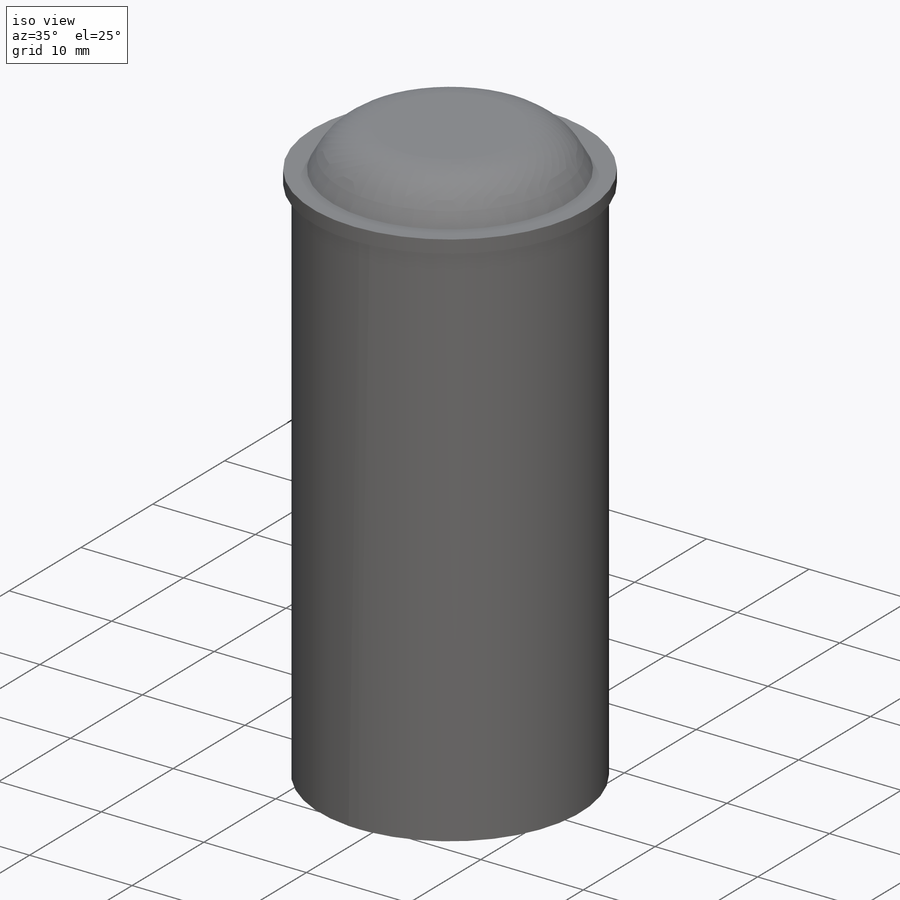
[diagram: iso view]
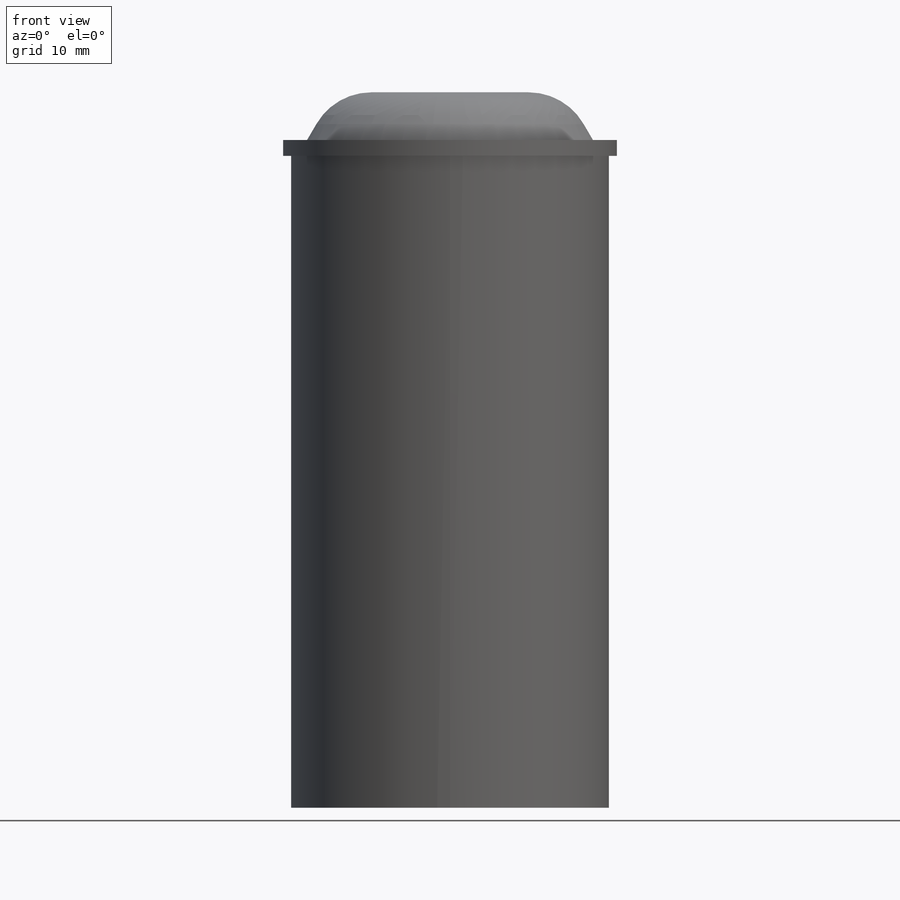
[diagram: front view]
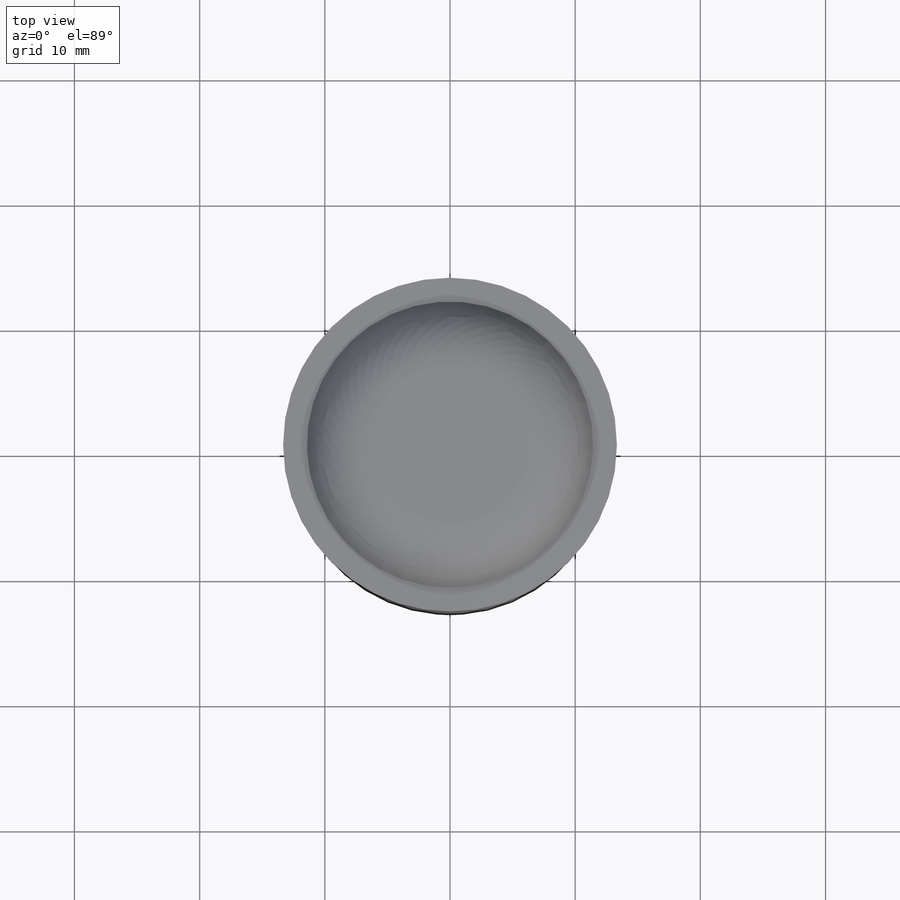
[diagram: top view]
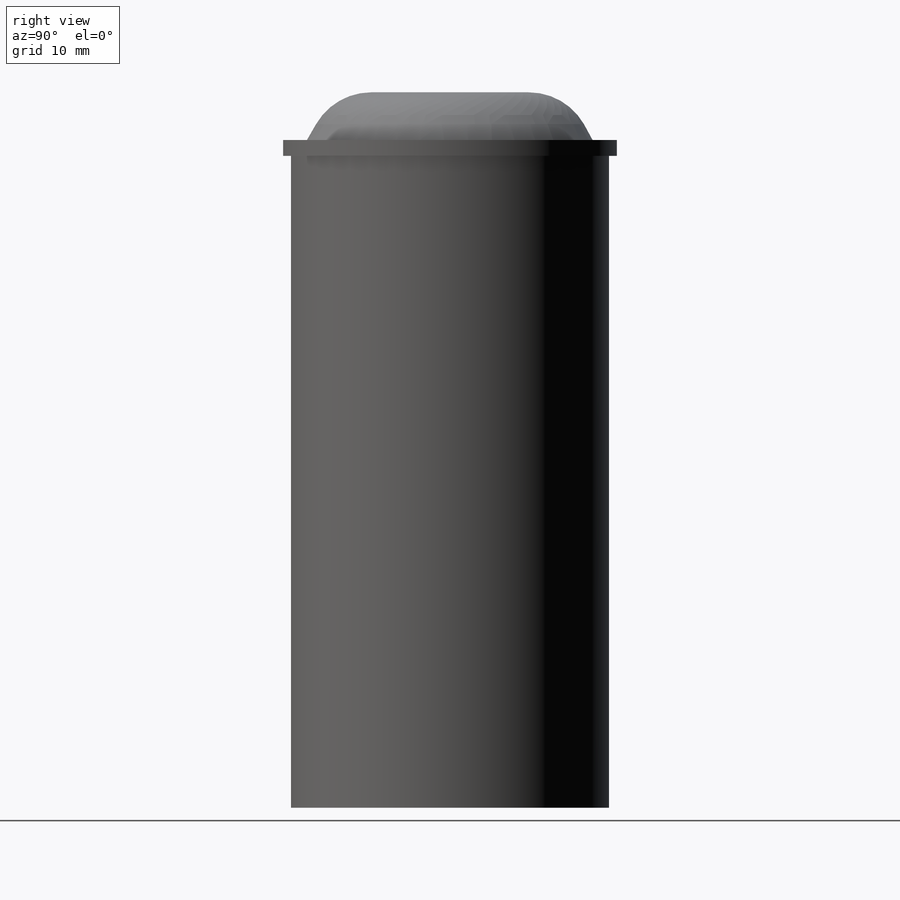
[diagram: right view]
SOLIDWORKS PART (.sldprt)
format: sldprt  version: not decoded by parser v0  size: 321,536 bytes
history: native  units: mm
features: sketch x4, extrude x4, material x1, fillet x1 (+13 scaffold rows collapsed)
feature tree (23):
  scaffold x13  (default folders/planes/origin — collapsed)
  material  "Material <not specified>"
  sketch  "Sketch1"  dims[D1=25.4mm]
  extrude  "Boss-Extrude1"  Depth=1.27mm
  sketch  "Sketch2"  dims[c1.D1=25.4mm c1.D2=~23.546347mm c1.D3=5.08mm c1.D4=2.54mm c2.D2=1.27mm c2.D5=8.0]
  extrude  "Boss-Extrude2"  Depth=50.8mm
  sketch  "Sketch3"  dims[D1=26.67mm]
  extrude  "Boss-Extrude3"  Depth=1.27mm
  sketch  "Sketch4"  dims[D1=22.86mm]
  extrude  "Boss-Extrude4"  Depth=3.81mm
  fillet  "Fillet1"  Radius=5.08mm
decode coverage: 9 of 9 modeling features carry decoded parameters
note: ~ marks probable driven/reference dimensions
note: suppression state not decoded; provenance and decode notes live in map.json
